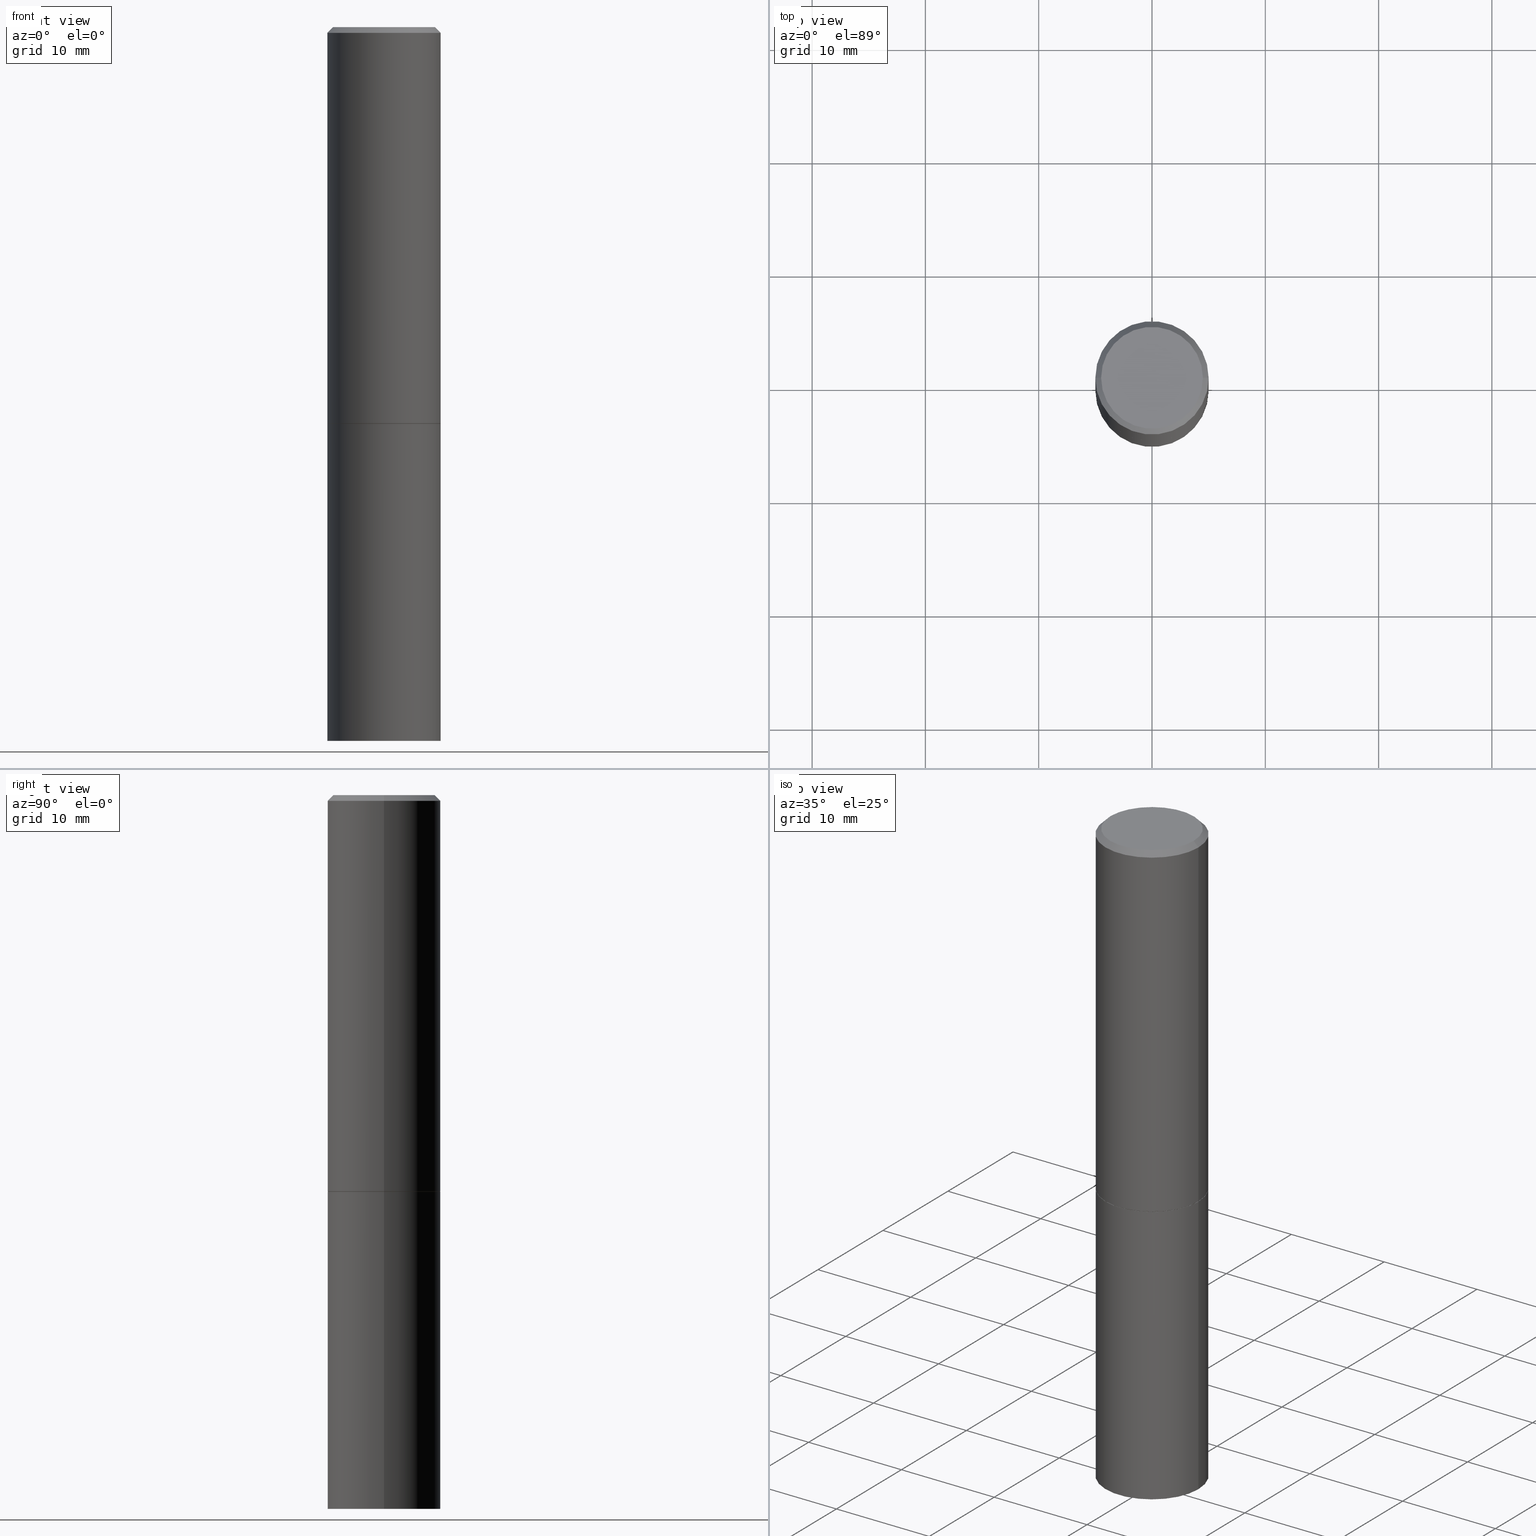
[diagram: canonical four-view strip — front | top / right | iso, engineering-drawing reading convention]
A machine part, canonical four-view strip (front | top / right | iso — engineering-drawing reading convention). The complete STEP part file that produces these views, byte-faithful:
ISO-10303-21;
HEADER;
FILE_DESCRIPTION (( 'STEP AP203' ),
    '1' );
FILE_NAME ('82970.STEP',
    '2024-02-29T19:37:44',
    ( '' ),
    ( '' ),
    'SwSTEP 2.0',
    'SolidWorks 2023',
    '' );
FILE_SCHEMA (( 'CONFIG_CONTROL_DESIGN' ));
ENDSEC;

DATA;
#1 = CARTESIAN_POINT ( 'NONE',  ( 4.890937612370283668E-31, -6.982962677686305168E-17, -0.02000000000000004205 ) ) ;
#2 = DIRECTION ( 'NONE',  ( -2.445468806185136597E-29, 3.491481338843145583E-15, 1.000000000000000000 ) ) ;
#3 = COORDINATED_UNIVERSAL_TIME_OFFSET ( 5, 0, .BEHIND. ) ;
#4 = DIRECTION ( 'NONE',  ( 0.000000000000000000, 0.000000000000000000, 1.000000000000000000 ) ) ;
#5 = EDGE_CURVE ( 'NONE', #351, #182, #170, .T. ) ;
#6 = DIRECTION ( 'NONE',  ( 1.000000000000000000, -6.982962677686268288E-15, 0.000000000000000000 ) ) ;
#7 = AXIS2_PLACEMENT_3D ( 'NONE', #190, #248, #224 ) ;
#8 = APPROVAL_PERSON_ORGANIZATION ( #310, #366, #156 ) ;
#9 = LINE ( 'NONE', #13, #263 ) ;
#10 = EDGE_CURVE ( 'NONE', #102, #270, #113, .T. ) ;
#11 = EDGE_LOOP ( 'NONE', ( #16, #108, #213, #241 ) ) ;
#12 = CARTESIAN_POINT ( 'NONE',  ( 0.1958499999999999963, -6.178525377216825244E-15, -1.377899999999999903 ) ) ;
#13 = CARTESIAN_POINT ( 'NONE',  ( 0.1968499999999998307, -1.374596203102540425E-15, 9.598753983154291049E-30 ) ) ;
#14 = CIRCLE ( 'NONE', #41, 0.1968499999999999417 ) ;
#15 = DIRECTION ( 'NONE',  ( 1.000000000000000000, -6.982962677686268288E-15, 0.000000000000000000 ) ) ;
#16 = ORIENTED_EDGE ( 'NONE', *, *, #100, .F. ) ;
#17 = COORDINATED_UNIVERSAL_TIME_OFFSET ( 5, 0, .BEHIND. ) ;
#18 = CONICAL_SURFACE ( 'NONE', #238, 0.1968499999999997752, 0.7853981633974469467 ) ;
#19 = AXIS2_PLACEMENT_3D ( 'NONE', #250, #271, #295 ) ;
#20 = EDGE_CURVE ( 'NONE', #270, #269, #107, .T. ) ;
#21 = CC_DESIGN_APPROVAL ( #198, ( #98 ) ) ;
#22 = DIRECTION ( 'NONE',  ( -1.000000000000000000, 6.982962677686265922E-15, -4.876176775795935793E-29 ) ) ;
#23 = APPROVAL_STATUS ( 'not_yet_approved' ) ;
#24 = ORIENTED_EDGE ( 'NONE', *, *, #31, .T. ) ;
#25 = ORIENTED_EDGE ( 'NONE', *, *, #201, .F. ) ;
#26 = AXIS2_PLACEMENT_3D ( 'NONE', #254, #116, #231 ) ;
#27 = EDGE_CURVE ( 'NONE', #39, #77, #179, .T. ) ;
#28 = DIRECTION ( 'NONE',  ( 1.000000000000000000, -6.982962677686266711E-15, 4.875932113059884174E-29 ) ) ;
#29 = EDGE_LOOP ( 'NONE', ( #259, #24, #350, #319 ) ) ;
#30 = DIRECTION ( 'NONE',  ( 0.7071067811865957564, -2.468850131082761932E-15, 0.7071067811864992780 ) ) ;
#31 = EDGE_CURVE ( 'NONE', #278, #182, #169, .T. ) ;
#32 = LENGTH_MEASURE_WITH_UNIT ( LENGTH_MEASURE( 0.02539999999999999897 ), #78 );
#33 = DIRECTION ( 'NONE',  ( 1.000000000000000000, -6.982962677686267499E-15, 0.000000000000000000 ) ) ;
#34 = CIRCLE ( 'NONE', #353, 0.1968500000000000250 ) ;
#35 = FACE_OUTER_BOUND ( 'NONE', #64, .T. ) ;
#36 = COORDINATED_UNIVERSAL_TIME_OFFSET ( 5, 0, .BEHIND. ) ;
#37 = ORIENTED_EDGE ( 'NONE', *, *, #31, .F. ) ;
#38 = COORDINATED_UNIVERSAL_TIME_OFFSET ( 5, 0, .BEHIND. ) ;
#39 = VERTEX_POINT ( 'NONE', #272 ) ;
#40 = CARTESIAN_POINT ( 'NONE',  ( -0.1968500000000000250, -5.336713275418556283E-15, -1.377900000000000125 ) ) ;
#41 = AXIS2_PLACEMENT_3D ( 'NONE', #229, #104, #223 ) ;
#42 = LOCAL_TIME ( 14, 37, 44.00000000000000000, #121 ) ;
#43 = ORIENTED_EDGE ( 'NONE', *, *, #289, .F. ) ;
#44 = DIRECTION ( 'NONE',  ( 1.000000000000000000, -6.982962677686268288E-15, 0.000000000000000000 ) ) ;
#45 = CARTESIAN_POINT ( 'NONE',  ( 3.369611468042499163E-29, -4.810912136791969650E-15, -1.377899999999999903 ) ) ;
#46 = DIRECTION ( 'NONE',  ( 1.000000000000000000, -6.982962677686266711E-15, 4.876176775795935793E-29 ) ) ;
#47 = DIRECTION ( 'NONE',  ( 1.000000000000000000, -6.982962677686267499E-15, 0.000000000000000000 ) ) ;
#48 = AXIS2_PLACEMENT_3D ( 'NONE', #160, #300, #308 ) ;
#49 = CC_DESIGN_PERSON_AND_ORGANIZATION_ASSIGNMENT ( #251, #191, ( #365 ) ) ;
#50 = CARTESIAN_POINT ( 'NONE',  ( -0.1968499999999999417, -1.039921765771237577E-15, -1.376900000000000013 ) ) ;
#51 = ORGANIZATION ( 'UNSPECIFIED', 'UNSPECIFIED', '' ) ;
#52 = CARTESIAN_POINT ( 'NONE',  ( 1.234936949548814617E-15, 0.1768499999999997851, -6.153342185293593634E-16 ) ) ;
#53 = DATE_AND_TIME ( #317, #42 ) ;
#54 = EDGE_LOOP ( 'NONE', ( #101, #164 ) ) ;
#55 = MECHANICAL_CONTEXT ( 'NONE', #196, 'mechanical' ) ;
#56 = EDGE_CURVE ( 'NONE', #215, #301, #14, .T. ) ;
#57 = ORIENTED_EDGE ( 'NONE', *, *, #235, .T. ) ;
#58 = VECTOR ( 'NONE', #142, 39.37007874015748143 ) ;
#59 = VECTOR ( 'NONE', #265, 39.37007874015748143 ) ;
#60 = EDGE_LOOP ( 'NONE', ( #183, #75, #92, #86 ) ) ;
#61 = MANIFOLD_SOLID_BREP ( 'Body-Move/Copy2[1]', #233 ) ;
#62 = DIRECTION ( 'NONE',  ( 1.000000000000000000, -6.982962677686265922E-15, 4.876176775795935793E-29 ) ) ;
#63 = CC_DESIGN_DATE_AND_TIME_ASSIGNMENT ( #167, #216, ( #330 ) ) ;
#64 = EDGE_LOOP ( 'NONE', ( #206, #321 ) ) ;
#65 = FACE_OUTER_BOUND ( 'NONE', #247, .T. ) ;
#66 = ADVANCED_BREP_SHAPE_REPRESENTATION ( '82970', ( #61, #67, #333 ), #234 ) ;
#67 = MANIFOLD_SOLID_BREP ( 'Body-Move/Copy2[2]', #96 ) ;
#68 = ORIENTED_EDGE ( 'NONE', *, *, #211, .T. ) ;
#69 = DIRECTION ( 'NONE',  ( -0.7071067811865465735, 2.468850131082246805E-15, -0.7071067811865484609 ) ) ;
#70 = AXIS2_PLACEMENT_3D ( 'NONE', #312, #172, #286 ) ;
#71 = DATE_AND_TIME ( #352, #230 ) ;
#72 = CARTESIAN_POINT ( 'NONE',  ( 6.065496279980994755E-29, -8.659921164732655335E-15, -2.480300000000000171 ) ) ;
#73 = ADVANCED_FACE ( 'NONE', ( #129 ), #325, .T. ) ;
#74 = CARTESIAN_POINT ( 'NONE',  ( 0.000000000000000000, 0.000000000000000000, 0.000000000000000000 ) ) ;
#75 = ORIENTED_EDGE ( 'NONE', *, *, #201, .T. ) ;
#76 = FACE_OUTER_BOUND ( 'NONE', #60, .T. ) ;
#77 = VERTEX_POINT ( 'NONE', #226 ) ;
#78 =( LENGTH_UNIT ( ) NAMED_UNIT ( * ) SI_UNIT ( $, .METRE. ) );
#79 = LINE ( 'NONE', #173, #276 ) ;
#80 = PERSON_AND_ORGANIZATION_ROLE ( 'classification_officer' ) ;
#81 = AXIS2_PLACEMENT_3D ( 'NONE', #74, #162, #137 ) ;
#82 = EDGE_CURVE ( 'NONE', #135, #269, #79, .T. ) ;
#83 = DATE_TIME_ROLE ( 'classification_date' ) ;
#84 = CARTESIAN_POINT ( 'NONE',  ( 0.1968500000000000250, -6.185508339894512836E-15, -1.377900000000000125 ) ) ;
#85 = CONICAL_SURFACE ( 'NONE', #290, 0.1958499999999999963, 0.7853981633975165577 ) ;
#86 = ORIENTED_EDGE ( 'NONE', *, *, #211, .F. ) ;
#87 = CC_DESIGN_PERSON_AND_ORGANIZATION_ASSIGNMENT ( #115, #80, ( #98 ) ) ;
#88 = VERTEX_POINT ( 'NONE', #148 ) ;
#89 = ORIENTED_EDGE ( 'NONE', *, *, #10, .T. ) ;
#90 = AXIS2_PLACEMENT_3D ( 'NONE', #364, #260, #335 ) ;
#91 = CARTESIAN_POINT ( 'NONE',  ( -0.1968499999999998307, 1.398703375343756013E-15, -9.682923725166775270E-30 ) ) ;
#92 = ORIENTED_EDGE ( 'NONE', *, *, #209, .T. ) ;
#93 = PRODUCT ( '82970', '82970', '', ( #55 ) ) ;
#94 = DIRECTION ( 'NONE',  ( 1.000000000000000000, -6.982962677686266711E-15, 4.876176775795935793E-29 ) ) ;
#95 = PERSON_AND_ORGANIZATION_ROLE ( 'creator' ) ;
#96 = CLOSED_SHELL ( 'NONE', ( #131, #134, #315, #120, #275, #256, #110, #334 ) ) ;
#97 = FACE_OUTER_BOUND ( 'NONE', #324, .T. ) ;
#98 = SECURITY_CLASSIFICATION ( '', '', #322 ) ;
#99 = CARTESIAN_POINT ( 'NONE',  ( 6.065496279980994755E-29, -8.659921164732655335E-15, -2.480300000000000171 ) ) ;
#100 = EDGE_CURVE ( 'NONE', #135, #102, #255, .T. ) ;
#101 = ORIENTED_EDGE ( 'NONE', *, *, #171, .F. ) ;
#102 = VERTEX_POINT ( 'NONE', #127 ) ;
#103 = FACE_OUTER_BOUND ( 'NONE', #29, .T. ) ;
#104 = DIRECTION ( 'NONE',  ( -2.445468806185136597E-29, 3.491481338843145583E-15, 1.000000000000000000 ) ) ;
#105 = PERSON_AND_ORGANIZATION_ROLE ( 'design_supplier' ) ;
#106 = CYLINDRICAL_SURFACE ( 'NONE', #19, 0.1968500000000000250 ) ;
#107 = CIRCLE ( 'NONE', #48, 0.1968499999999997752 ) ;
#108 = ORIENTED_EDGE ( 'NONE', *, *, #82, .T. ) ;
#109 = CARTESIAN_POINT ( 'NONE',  ( 1.374596203102575135E-15, 0.1968499999999951955, -1.377900000000000791 ) ) ;
#110 = ADVANCED_FACE ( 'NONE', ( #184 ), #348, .F. ) ;
#111 = CARTESIAN_POINT ( 'NONE',  ( 3.369611468042499724E-29, -4.810912136791970439E-15, -1.377900000000000125 ) ) ;
#112 = CALENDAR_DATE ( 2024, 29, 2 ) ;
#113 = LINE ( 'NONE', #329, #174 ) ;
#114 = CIRCLE ( 'NONE', #323, 0.1958499999999999963 ) ;
#115 = PERSON_AND_ORGANIZATION ( #291, #51 ) ;
#116 = DIRECTION ( 'NONE',  ( -2.445468806185136597E-29, 3.491481338843145583E-15, 1.000000000000000000 ) ) ;
#117 = DIRECTION ( 'NONE',  ( 0.7071067811865465735, -7.319954787623252890E-15, -0.7071067811865484609 ) ) ;
#118 = DIRECTION ( 'NONE',  ( -2.445468806185136877E-29, 3.491481338843145188E-15, 1.000000000000000000 ) ) ;
#119 = EDGE_CURVE ( 'NONE', #301, #270, #293, .T. ) ;
#120 = ADVANCED_FACE ( 'NONE', ( #97 ), #363, .T. ) ;
#121 = COORDINATED_UNIVERSAL_TIME_OFFSET ( 5, 0, .BEHIND. ) ;
#122 = AXIS2_PLACEMENT_3D ( 'NONE', #111, #199, #47 ) ;
#123 = DIRECTION ( 'NONE',  ( -2.445468806185136597E-29, 3.491481338843145583E-15, 1.000000000000000000 ) ) ;
#124 = DIRECTION ( 'NONE',  ( 1.000000000000000000, 0.000000000000000000, 0.000000000000000000 ) ) ;
#125 = ORIENTED_EDGE ( 'NONE', *, *, #119, .F. ) ;
#126 = ORIENTED_EDGE ( 'NONE', *, *, #362, .T. ) ;
#127 = CARTESIAN_POINT ( 'NONE',  ( -0.1768499999999997851, 1.269851762937246069E-15, 4.268512490091652920E-18 ) ) ;
#128 = DIRECTION ( 'NONE',  ( 1.000000000000000000, -6.982962677686265922E-15, 0.000000000000000000 ) ) ;
#129 = FACE_OUTER_BOUND ( 'NONE', #327, .T. ) ;
#130 = DIMENSIONAL_EXPONENTS ( 1.000000000000000000, 0.000000000000000000, 0.000000000000000000, 0.000000000000000000, 0.000000000000000000, 0.000000000000000000, 0.000000000000000000 ) ;
#131 = ADVANCED_FACE ( 'NONE', ( #320 ), #347, .T. ) ;
#132 = EDGE_LOOP ( 'NONE', ( #219, #126, #294, #345 ) ) ;
#133 = CARTESIAN_POINT ( 'NONE',  ( 0.1968499999999999417, -6.182016858555667463E-15, -1.376900000000000013 ) ) ;
#134 = ADVANCED_FACE ( 'NONE', ( #65 ), #316, .T. ) ;
#135 = VERTEX_POINT ( 'NONE', #252 ) ;
#136 = DIRECTION ( 'NONE',  ( 2.438088387897960049E-29, -3.491481338843145188E-15, -1.000000000000000000 ) ) ;
#137 = DIRECTION ( 'NONE',  ( 1.000000000000000000, -6.982962677686265922E-15, 4.876176775795935793E-29 ) ) ;
#138 = VECTOR ( 'NONE', #118, 39.37007874015748143 ) ;
#139 = CARTESIAN_POINT ( 'NONE',  ( 3.369611468042499163E-29, -4.810912136791969650E-15, -1.377899999999999903 ) ) ;
#140 = PERSON_AND_ORGANIZATION ( #291, #51 ) ;
#141 = EDGE_CURVE ( 'NONE', #215, #269, #9, .T. ) ;
#142 = DIRECTION ( 'NONE',  ( -2.445468806185136877E-29, 3.491481338843145188E-15, 1.000000000000000000 ) ) ;
#143 = DIRECTION ( 'NONE',  ( -2.445468806185136597E-29, 3.491481338843145583E-15, 1.000000000000000000 ) ) ;
#144 = AXIS2_PLACEMENT_3D ( 'NONE', #194, #143, #46 ) ;
#145 = ADVANCED_FACE ( 'NONE', ( #35 ), #307, .F. ) ;
#146 = CC_DESIGN_PERSON_AND_ORGANIZATION_ASSIGNMENT ( #288, #210, ( #93 ) ) ;
#147 = AXIS2_PLACEMENT_3D ( 'NONE', #341, #155, #62 ) ;
#148 = CARTESIAN_POINT ( 'NONE',  ( 0.1968500000000000250, -1.003451736783519694E-14, -2.480300000000000171 ) ) ;
#149 = APPLICATION_PROTOCOL_DEFINITION ( 'international standard', 'config_control_design', 1994, #196 ) ;
#150 = PERSON_AND_ORGANIZATION ( #291, #51 ) ;
#151 = APPROVAL_DATE_TIME ( #53, #267 ) ;
#152 = ORIENTED_EDGE ( 'NONE', *, *, #235, .F. ) ;
#153 = AXIS2_PLACEMENT_3D ( 'NONE', #161, #228, #128 ) ;
#154 = CARTESIAN_POINT ( 'NONE',  ( -0.1958499999999999963, -3.419314188805812871E-15, -1.377899999999999903 ) ) ;
#155 = DIRECTION ( 'NONE',  ( -2.438088387897960049E-29, 3.491481338843145188E-15, 1.000000000000000000 ) ) ;
#156 = APPROVAL_ROLE ( '' ) ;
#157 = CIRCLE ( 'NONE', #26, 0.1968499999999997752 ) ;
#158 = DIRECTION ( 'NONE',  ( -2.445468806185136877E-29, 3.491481338843145188E-15, 1.000000000000000000 ) ) ;
#159 = CC_DESIGN_APPROVAL ( #267, ( #330 ) ) ;
#160 = CARTESIAN_POINT ( 'NONE',  ( 4.890937612370283668E-31, -6.982962677686305168E-17, -0.02000000000000004205 ) ) ;
#161 = CARTESIAN_POINT ( 'NONE',  ( 3.367165999236314681E-29, -4.807420655453126643E-15, -1.376900000000000013 ) ) ;
#162 = DIRECTION ( 'NONE',  ( -2.445468806185136597E-29, 3.491481338843145583E-15, 1.000000000000000000 ) ) ;
#163 = ORIENTED_EDGE ( 'NONE', *, *, #82, .F. ) ;
#164 = ORIENTED_EDGE ( 'NONE', *, *, #360, .F. ) ;
#165 =( CONVERSION_BASED_UNIT ( 'INCH', #32 ) LENGTH_UNIT ( ) NAMED_UNIT ( #130 ) );
#166 = ADVANCED_FACE ( 'NONE', ( #103 ), #106, .T. ) ;
#167 = DATE_AND_TIME ( #240, #359 ) ;
#168 = CARTESIAN_POINT ( 'NONE',  ( 0.1968499999999997752, -1.420318657638187544E-15, -0.02000000000000004205 ) ) ;
#169 = LINE ( 'NONE', #280, #58 ) ;
#170 = CIRCLE ( 'NONE', #122, 0.1968500000000000250 ) ;
#171 = EDGE_CURVE ( 'NONE', #88, #278, #34, .T. ) ;
#172 = DIRECTION ( 'NONE',  ( 2.438088387897960049E-29, -3.491481338843145188E-15, -1.000000000000000000 ) ) ;
#173 = CARTESIAN_POINT ( 'NONE',  ( 0.1968499999999997752, -1.420318657638187544E-15, -0.02000000000000004205 ) ) ;
#174 = VECTOR ( 'NONE', #69, 39.37007874015748143 ) ;
#175 = FACE_OUTER_BOUND ( 'NONE', #11, .T. ) ;
#176 = CARTESIAN_POINT ( 'NONE',  ( 0.1968500000000000250, -1.374596203102541608E-15, 9.598753983154300858E-30 ) ) ;
#177 = CARTESIAN_POINT ( 'NONE',  ( 0.000000000000000000, 0.000000000000000000, 0.000000000000000000 ) ) ;
#178 = CARTESIAN_POINT ( 'NONE',  ( -1.043851414335219820E-46, 1.490343170380447200E-32, 4.268512490100411279E-18 ) ) ;
#179 = CIRCLE ( 'NONE', #268, 0.1958499999999999963 ) ;
#180 = AXIS2_PLACEMENT_3D ( 'NONE', #52, #313, #22 ) ;
#181 = LOCAL_TIME ( 14, 37, 44.00000000000000000, #38 ) ;
#182 = VERTEX_POINT ( 'NONE', #40 ) ;
#183 = ORIENTED_EDGE ( 'NONE', *, *, #362, .F. ) ;
#184 = FACE_OUTER_BOUND ( 'NONE', #225, .T. ) ;
#185 =( NAMED_UNIT ( * ) SI_UNIT ( $, .STERADIAN. ) SOLID_ANGLE_UNIT ( ) );
#186 = VECTOR ( 'NONE', #208, 39.37007874015748143 ) ;
#187 = APPROVAL_PERSON_ORGANIZATION ( #200, #198, #246 ) ;
#188 = DIRECTION ( 'NONE',  ( -2.445468806185136597E-29, 3.491481338843145583E-15, 1.000000000000000000 ) ) ;
#189 = ORIENTED_EDGE ( 'NONE', *, *, #360, .T. ) ;
#190 = CARTESIAN_POINT ( 'NONE',  ( -1.043851414335219820E-46, 1.490343170380447200E-32, 4.268512490100411279E-18 ) ) ;
#191 = PERSON_AND_ORGANIZATION_ROLE ( 'creator' ) ;
#192 = DIRECTION ( 'NONE',  ( -2.445468806185136597E-29, 3.491481338843145583E-15, 1.000000000000000000 ) ) ;
#193 = ORIENTED_EDGE ( 'NONE', *, *, #338, .F. ) ;
#194 = CARTESIAN_POINT ( 'NONE',  ( 0.000000000000000000, 0.000000000000000000, 0.000000000000000000 ) ) ;
#195 = CIRCLE ( 'NONE', #153, 0.1968499999999999417 ) ;
#196 = APPLICATION_CONTEXT ( 'configuration controlled 3d designs of mechanical parts and assemblies' ) ;
#197 = UNCERTAINTY_MEASURE_WITH_UNIT (LENGTH_MEASURE( 1.000000000000000082E-05 ), #165, 'distance_accuracy_value', 'NONE');
#198 = APPROVAL ( #283, 'UNSPECIFIED' ) ;
#199 = DIRECTION ( 'NONE',  ( -2.445468806185136597E-29, 3.491481338843145583E-15, 1.000000000000000000 ) ) ;
#200 = PERSON_AND_ORGANIZATION ( #291, #51 ) ;
#201 = EDGE_CURVE ( 'NONE', #77, #39, #114, .T. ) ;
#202 = PRODUCT_DEFINITION_SHAPE ( 'NONE', 'NONE',  #330 ) ;
#203 = CIRCLE ( 'NONE', #7, 0.1768499999999997851 ) ;
#204 = PLANE ( 'NONE',  #70 ) ;
#205 = CC_DESIGN_PERSON_AND_ORGANIZATION_ASSIGNMENT ( #262, #95, ( #330 ) ) ;
#206 = ORIENTED_EDGE ( 'NONE', *, *, #5, .T. ) ;
#207 = PLANE ( 'NONE',  #180 ) ;
#208 = DIRECTION ( 'NONE',  ( -2.445468806185136877E-29, 3.491481338843145188E-15, 1.000000000000000000 ) ) ;
#209 = EDGE_CURVE ( 'NONE', #39, #215, #299, .T. ) ;
#210 = PERSON_AND_ORGANIZATION_ROLE ( 'design_owner' ) ;
#211 = EDGE_CURVE ( 'NONE', #301, #215, #195, .T. ) ;
#212 = ORIENTED_EDGE ( 'NONE', *, *, #119, .T. ) ;
#213 = ORIENTED_EDGE ( 'NONE', *, *, #289, .T. ) ;
#214 = AXIS2_PLACEMENT_3D ( 'NONE', #266, #243, #287 ) ;
#215 = VERTEX_POINT ( 'NONE', #133 ) ;
#216 = DATE_TIME_ROLE ( 'creation_date' ) ;
#217 = DIRECTION ( 'NONE',  ( -2.445468806185136597E-29, 3.491481338843145583E-15, 1.000000000000000000 ) ) ;
#218 = CALENDAR_DATE ( 2024, 29, 2 ) ;
#219 = ORIENTED_EDGE ( 'NONE', *, *, #27, .T. ) ;
#220 = AXIS2_PLACEMENT_3D ( 'NONE', #177, #123, #94 ) ;
#221 = DIRECTION ( 'NONE',  ( -2.445468806185136597E-29, 3.491481338843145583E-15, 1.000000000000000000 ) ) ;
#222 =( NAMED_UNIT ( * ) PLANE_ANGLE_UNIT ( ) SI_UNIT ( $, .RADIAN. ) );
#223 = DIRECTION ( 'NONE',  ( 1.000000000000000000, -6.982962677686265922E-15, 0.000000000000000000 ) ) ;
#224 = DIRECTION ( 'NONE',  ( 1.000000000000000000, -6.982962677686266711E-15, 4.875932113059884174E-29 ) ) ;
#225 = EDGE_LOOP ( 'NONE', ( #339, #25 ) ) ;
#226 = CARTESIAN_POINT ( 'NONE',  ( -0.1958499999999999963, -3.414015734457591258E-15, -1.377899999999999903 ) ) ;
#227 = CARTESIAN_POINT ( 'NONE',  ( 3.369611468042499163E-29, -4.810912136791969650E-15, -1.377899999999999903 ) ) ;
#228 = DIRECTION ( 'NONE',  ( -2.445468806185136597E-29, 3.491481338843145583E-15, 1.000000000000000000 ) ) ;
#229 = CARTESIAN_POINT ( 'NONE',  ( 3.367165999236314681E-29, -4.807420655453126643E-15, -1.376900000000000013 ) ) ;
#230 = LOCAL_TIME ( 14, 37, 44.00000000000000000, #17 ) ;
#231 = DIRECTION ( 'NONE',  ( 1.000000000000000000, -6.982962677686266711E-15, 0.000000000000000000 ) ) ;
#232 = DIRECTION ( 'NONE',  ( 2.445468806185136597E-29, -3.491481338843145583E-15, -1.000000000000000000 ) ) ;
#233 = CLOSED_SHELL ( 'NONE', ( #166, #355, #145, #73 ) ) ;
#234 =( GEOMETRIC_REPRESENTATION_CONTEXT ( 3 ) GLOBAL_UNCERTAINTY_ASSIGNED_CONTEXT ( ( #197 ) ) GLOBAL_UNIT_ASSIGNED_CONTEXT ( ( #165, #222, #185 ) ) REPRESENTATION_CONTEXT ( 'NONE', 'WORKASPACE' ) );
#235 = EDGE_CURVE ( 'NONE', #102, #135, #203, .T. ) ;
#236 = EDGE_LOOP ( 'NONE', ( #57, #305 ) ) ;
#237 = DIRECTION ( 'NONE',  ( -1.000000000000000000, 6.982962677686266711E-15, 0.000000000000000000 ) ) ;
#238 = AXIS2_PLACEMENT_3D ( 'NONE', #1, #232, #237 ) ;
#239 = AXIS2_PLACEMENT_3D ( 'NONE', #99, #217, #33 ) ;
#240 = CALENDAR_DATE ( 2024, 29, 2 ) ;
#241 = ORIENTED_EDGE ( 'NONE', *, *, #10, .F. ) ;
#242 = PRODUCT_RELATED_PRODUCT_CATEGORY ( 'detail', '', ( #93 ) ) ;
#243 = DIRECTION ( 'NONE',  ( 2.445468806185136597E-29, -3.491481338843145583E-15, -1.000000000000000000 ) ) ;
#244 = ORIENTED_EDGE ( 'NONE', *, *, #20, .T. ) ;
#245 = DIRECTION ( 'NONE',  ( 1.000000000000000000, -6.982962677686268288E-15, 0.000000000000000000 ) ) ;
#246 = APPROVAL_ROLE ( '' ) ;
#247 = EDGE_LOOP ( 'NONE', ( #298, #212, #43, #356 ) ) ;
#248 = DIRECTION ( 'NONE',  ( -2.445468806185136597E-29, 3.491481338843145583E-15, 1.000000000000000000 ) ) ;
#249 = CC_DESIGN_APPROVAL ( #366, ( #365 ) ) ;
#250 = CARTESIAN_POINT ( 'NONE',  ( 0.000000000000000000, 0.000000000000000000, 0.000000000000000000 ) ) ;
#251 = PERSON_AND_ORGANIZATION ( #291, #51 ) ;
#252 = CARTESIAN_POINT ( 'NONE',  ( 0.1768499999999997851, -1.316798864272040563E-15, 4.268512490109333727E-18 ) ) ;
#253 = CC_DESIGN_PERSON_AND_ORGANIZATION_ASSIGNMENT ( #140, #105, ( #365 ) ) ;
#254 = CARTESIAN_POINT ( 'NONE',  ( 4.890937612370283668E-31, -6.982962677686305168E-17, -0.02000000000000004205 ) ) ;
#255 = CIRCLE ( 'NONE', #311, 0.1768499999999997851 ) ;
#256 = ADVANCED_FACE ( 'NONE', ( #76 ), #85, .T. ) ;
#257 = AXIS2_PLACEMENT_3D ( 'NONE', #261, #2, #6 ) ;
#258 = APPROVAL_ROLE ( '' ) ;
#259 = ORIENTED_EDGE ( 'NONE', *, *, #171, .T. ) ;
#260 = DIRECTION ( 'NONE',  ( -2.445468806185136597E-29, 3.491481338843145583E-15, 1.000000000000000000 ) ) ;
#261 = CARTESIAN_POINT ( 'NONE',  ( 3.369611468042499163E-29, -4.810912136791969650E-15, -1.377899999999999903 ) ) ;
#262 = PERSON_AND_ORGANIZATION ( #291, #51 ) ;
#263 = VECTOR ( 'NONE', #158, 39.37007874015748143 ) ;
#264 = EDGE_LOOP ( 'NONE', ( #125, #68, #326, #285 ) ) ;
#265 = DIRECTION ( 'NONE',  ( -0.7071067811865957564, 7.493145998870527710E-15, 0.7071067811864992780 ) ) ;
#266 = CARTESIAN_POINT ( 'NONE',  ( 4.890937612370283668E-31, -6.982962677686305168E-17, -0.02000000000000004205 ) ) ;
#267 = APPROVAL ( #23, 'UNSPECIFIED' ) ;
#268 = AXIS2_PLACEMENT_3D ( 'NONE', #45, #188, #245 ) ;
#269 = VERTEX_POINT ( 'NONE', #168 ) ;
#270 = VERTEX_POINT ( 'NONE', #279 ) ;
#271 = DIRECTION ( 'NONE',  ( -2.445468806185136597E-29, 3.491481338843145583E-15, 1.000000000000000000 ) ) ;
#272 = CARTESIAN_POINT ( 'NONE',  ( 0.1958499999999999963, -6.178525377216825244E-15, -1.377899999999999903 ) ) ;
#273 = APPROVAL_DATE_TIME ( #71, #198 ) ;
#274 = SHAPE_DEFINITION_REPRESENTATION ( #202, #66 ) ;
#275 = ADVANCED_FACE ( 'NONE', ( #302 ), #309, .T. ) ;
#276 = VECTOR ( 'NONE', #117, 39.37007874015748143 ) ;
#277 = DIRECTION ( 'NONE',  ( -1.000000000000000000, 6.982962677686265922E-15, -4.876176775795935793E-29 ) ) ;
#278 = VERTEX_POINT ( 'NONE', #282 ) ;
#279 = CARTESIAN_POINT ( 'NONE',  ( -0.1968499999999997752, 1.304766576325676930E-15, -0.02000000000000004205 ) ) ;
#280 = CARTESIAN_POINT ( 'NONE',  ( -0.1968500000000000250, 1.398703375343757393E-15, -9.682923725166783677E-30 ) ) ;
#281 = DESIGN_CONTEXT ( 'detailed design', #361, 'design' ) ;
#282 = CARTESIAN_POINT ( 'NONE',  ( -0.1968500000000000250, -5.336713275418556283E-15, -2.480300000000000171 ) ) ;
#283 = APPROVAL_STATUS ( 'not_yet_approved' ) ;
#284 = CIRCLE ( 'NONE', #239, 0.1968500000000000250 ) ;
#285 = ORIENTED_EDGE ( 'NONE', *, *, #20, .F. ) ;
#286 = DIRECTION ( 'NONE',  ( -1.000000000000000000, 6.982962677686265922E-15, -4.876176775795935793E-29 ) ) ;
#287 = DIRECTION ( 'NONE',  ( -1.000000000000000000, 6.982962677686266711E-15, 0.000000000000000000 ) ) ;
#288 = PERSON_AND_ORGANIZATION ( #291, #51 ) ;
#289 = EDGE_CURVE ( 'NONE', #269, #270, #157, .T. ) ;
#290 = AXIS2_PLACEMENT_3D ( 'NONE', #139, #328, #44 ) ;
#291 = PERSON ( 'UNSPECIFIED', 'UNSPECIFIED', 'UNSPECIFIED', ('UNSPECIFIED'), ('UNSPECIFIED'), ('UNSPECIFIED') ) ;
#292 = EDGE_CURVE ( 'NONE', #88, #351, #314, .T. ) ;
#293 = LINE ( 'NONE', #91, #186 ) ;
#294 = ORIENTED_EDGE ( 'NONE', *, *, #56, .F. ) ;
#295 = DIRECTION ( 'NONE',  ( 1.000000000000000000, -6.982962677686265922E-15, 4.876176775795935793E-29 ) ) ;
#296 = APPROVAL_DATE_TIME ( #358, #366 ) ;
#297 = LOCAL_TIME ( 14, 37, 44.00000000000000000, #36 ) ;
#298 = ORIENTED_EDGE ( 'NONE', *, *, #56, .T. ) ;
#299 = LINE ( 'NONE', #12, #331 ) ;
#300 = DIRECTION ( 'NONE',  ( -2.445468806185136597E-29, 3.491481338843145583E-15, 1.000000000000000000 ) ) ;
#301 = VERTEX_POINT ( 'NONE', #50 ) ;
#302 = FACE_OUTER_BOUND ( 'NONE', #264, .T. ) ;
#303 = DATE_AND_TIME ( #218, #297 ) ;
#304 = AXIS2_PLACEMENT_3D ( 'NONE', #109, #136, #277 ) ;
#305 = ORIENTED_EDGE ( 'NONE', *, *, #100, .T. ) ;
#306 = CC_DESIGN_SECURITY_CLASSIFICATION ( #98, ( #365 ) ) ;
#307 = PLANE ( 'NONE',  #304 ) ;
#308 = DIRECTION ( 'NONE',  ( 1.000000000000000000, -6.982962677686266711E-15, 0.000000000000000000 ) ) ;
#309 = CYLINDRICAL_SURFACE ( 'NONE', #144, 0.1968499999999998307 ) ;
#310 = PERSON_AND_ORGANIZATION ( #291, #51 ) ;
#311 = AXIS2_PLACEMENT_3D ( 'NONE', #178, #318, #28 ) ;
#312 = CARTESIAN_POINT ( 'NONE',  ( 1.374596203102602153E-15, 0.1968499999999913375, -2.480300000000001059 ) ) ;
#313 = DIRECTION ( 'NONE',  ( 2.438088387897960049E-29, -3.491481338843145188E-15, -1.000000000000000000 ) ) ;
#314 = LINE ( 'NONE', #176, #138 ) ;
#315 = ADVANCED_FACE ( 'NONE', ( #175 ), #18, .T. ) ;
#316 = CYLINDRICAL_SURFACE ( 'NONE', #220, 0.1968499999999998307 ) ;
#317 = CALENDAR_DATE ( 2024, 29, 2 ) ;
#318 = DIRECTION ( 'NONE',  ( -2.445468806185136597E-29, 3.491481338843145583E-15, 1.000000000000000000 ) ) ;
#319 = ORIENTED_EDGE ( 'NONE', *, *, #292, .F. ) ;
#320 = FACE_OUTER_BOUND ( 'NONE', #132, .T. ) ;
#321 = ORIENTED_EDGE ( 'NONE', *, *, #338, .T. ) ;
#322 = SECURITY_CLASSIFICATION_LEVEL ( 'unclassified' ) ;
#323 = AXIS2_PLACEMENT_3D ( 'NONE', #227, #221, #15 ) ;
#324 = EDGE_LOOP ( 'NONE', ( #163, #152, #89, #244 ) ) ;
#325 = CYLINDRICAL_SURFACE ( 'NONE', #81, 0.1968500000000000250 ) ;
#326 = ORIENTED_EDGE ( 'NONE', *, *, #141, .T. ) ;
#327 = EDGE_LOOP ( 'NONE', ( #37, #189, #349, #193 ) ) ;
#328 = DIRECTION ( 'NONE',  ( -2.445468806185136597E-29, 3.491481338843145583E-15, 1.000000000000000000 ) ) ;
#329 = CARTESIAN_POINT ( 'NONE',  ( -0.1968499999999997752, 1.304766576325676930E-15, -0.02000000000000004205 ) ) ;
#330 = PRODUCT_DEFINITION ( 'UNKNOWN', '', #365, #281 ) ;
#331 = VECTOR ( 'NONE', #30, 39.37007874015748143 ) ;
#332 = APPROVAL_STATUS ( 'not_yet_approved' ) ;
#333 = AXIS2_PLACEMENT_3D ( 'NONE', #346, #4, #124 ) ;
#334 = ADVANCED_FACE ( 'NONE', ( #340 ), #207, .F. ) ;
#335 = DIRECTION ( 'NONE',  ( 1.000000000000000000, -6.982962677686267499E-15, 0.000000000000000000 ) ) ;
#336 = CIRCLE ( 'NONE', #90, 0.1968500000000000250 ) ;
#337 = FACE_OUTER_BOUND ( 'NONE', #54, .T. ) ;
#338 = EDGE_CURVE ( 'NONE', #182, #351, #336, .T. ) ;
#339 = ORIENTED_EDGE ( 'NONE', *, *, #27, .F. ) ;
#340 = FACE_OUTER_BOUND ( 'NONE', #236, .T. ) ;
#341 = CARTESIAN_POINT ( 'NONE',  ( 3.369611468042499724E-29, -4.810912136791970439E-15, -1.377900000000000125 ) ) ;
#342 = APPROVAL_PERSON_ORGANIZATION ( #150, #267, #258 ) ;
#343 = CC_DESIGN_DATE_AND_TIME_ASSIGNMENT ( #303, #83, ( #98 ) ) ;
#344 = APPLICATION_PROTOCOL_DEFINITION ( 'international standard', 'config_control_design', 1994, #361 ) ;
#345 = ORIENTED_EDGE ( 'NONE', *, *, #209, .F. ) ;
#346 = CARTESIAN_POINT ( 'NONE',  ( 0.000000000000000000, 0.000000000000000000, 0.000000000000000000 ) ) ;
#347 = CONICAL_SURFACE ( 'NONE', #257, 0.1958499999999999963, 0.7853981633975165577 ) ;
#348 = PLANE ( 'NONE',  #147 ) ;
#349 = ORIENTED_EDGE ( 'NONE', *, *, #292, .T. ) ;
#350 = ORIENTED_EDGE ( 'NONE', *, *, #5, .F. ) ;
#351 = VERTEX_POINT ( 'NONE', #84 ) ;
#352 = CALENDAR_DATE ( 2024, 29, 2 ) ;
#353 = AXIS2_PLACEMENT_3D ( 'NONE', #72, #192, #354 ) ;
#354 = DIRECTION ( 'NONE',  ( 1.000000000000000000, -6.982962677686267499E-15, 0.000000000000000000 ) ) ;
#355 = ADVANCED_FACE ( 'NONE', ( #337 ), #204, .T. ) ;
#356 = ORIENTED_EDGE ( 'NONE', *, *, #141, .F. ) ;
#357 = LINE ( 'NONE', #154, #59 ) ;
#358 = DATE_AND_TIME ( #112, #181 ) ;
#359 = LOCAL_TIME ( 14, 37, 44.00000000000000000, #3 ) ;
#360 = EDGE_CURVE ( 'NONE', #278, #88, #284, .T. ) ;
#361 = APPLICATION_CONTEXT ( 'configuration controlled 3d designs of mechanical parts and assemblies' ) ;
#362 = EDGE_CURVE ( 'NONE', #77, #301, #357, .T. ) ;
#363 = CONICAL_SURFACE ( 'NONE', #214, 0.1968499999999997752, 0.7853981633974469467 ) ;
#364 = CARTESIAN_POINT ( 'NONE',  ( 3.369611468042499724E-29, -4.810912136791970439E-15, -1.377900000000000125 ) ) ;
#365 = PRODUCT_DEFINITION_FORMATION_WITH_SPECIFIED_SOURCE ( 'ANY', '', #93, .NOT_KNOWN. ) ;
#366 = APPROVAL ( #332, 'UNSPECIFIED' ) ;
ENDSEC;
END-ISO-10303-21;
